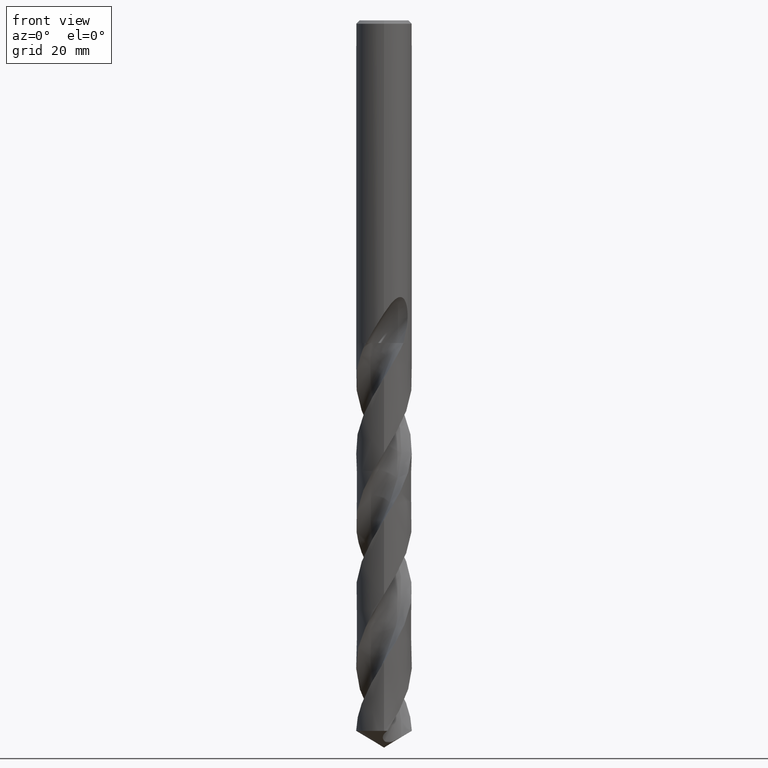
[diagram: clean part render]
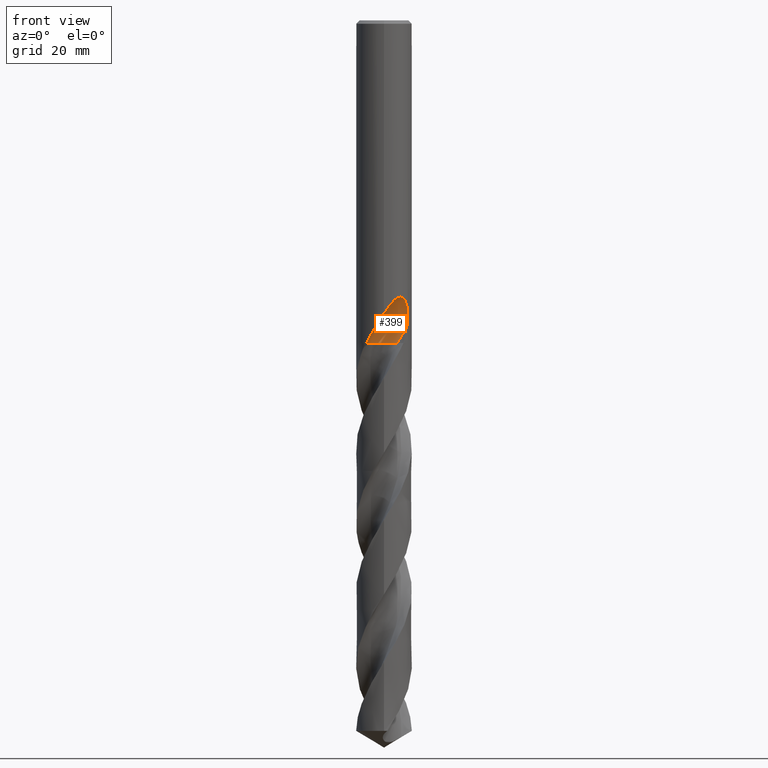
[diagram: same view with one face highlighted and labeled with its STEP entity id]
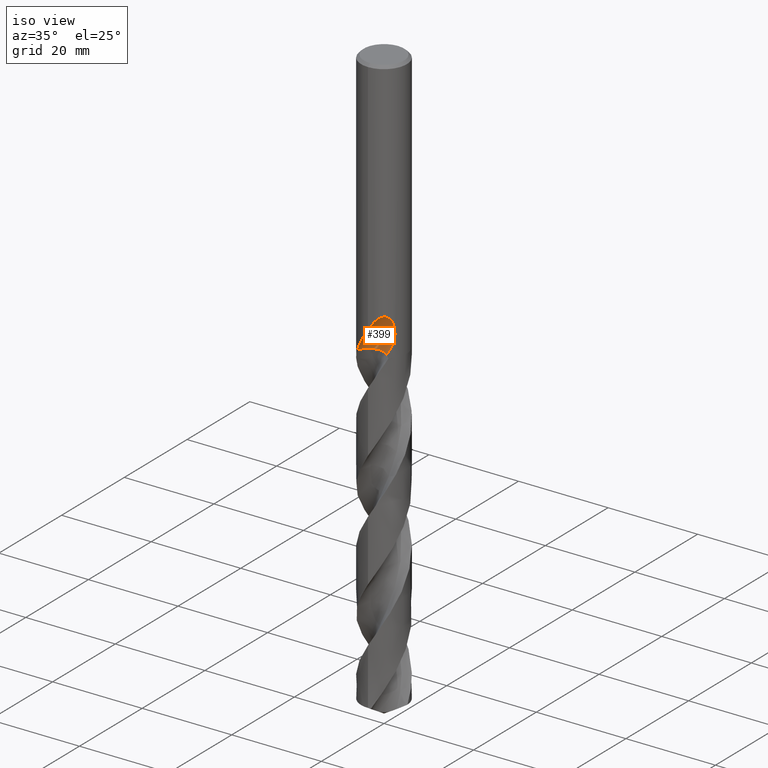
[diagram: same view with one face highlighted and labeled with its STEP entity id]
A machine part, front view. The second image highlights one B-rep face of the part: STEP entity #399.
A second angle (iso view) of the same face is appended — the face is thin or edge-on in the first view.
In plain terms, the highlighted face is a SurfaceOfRevolution surface.
Its self-contained STEP definition (entity closure, byte-faithful):
#321=EDGE_CURVE('',#389,#357,#824,.T.);
#357=VERTEX_POINT('',#863);
#367=EDGE_CURVE('',#379,#389,#874,.T.);
#379=VERTEX_POINT('',#887);
#389=VERTEX_POINT('',#898);
#399=ADVANCED_FACE('',(#908),#909,.F.);
#431=EDGE_CURVE('',#451,#357,#942,.T.);
#451=VERTEX_POINT('',#962);
#627=EDGE_CURVE('',#451,#379,#1156,.T.);
#824=B_SPLINE_CURVE_WITH_KNOTS('',3,(#2566,#2567,#2568,#2569,#2570,#2571,#2572,#2573,#2574,#2575,#2576,#2577,#2578,#2579,#2580,#2581,#2582,#2583,#2584,#2585,#2586,#2587,#2588,#2589,#2590,#2591,#2592,#2593,#2594,#2595),.UNSPECIFIED.,.F.,.F.,(4,2,2,2,2,2,2,2,2,2,2,2,2,2,4),(0.0,2.4950719510877,3.85909418089809,5.09509911552121,6.53135879807394,8.25636433044676,9.74920674358221,10.4265543005089,10.9216576712182,11.3901997545499,11.9846176148873,12.8543127021487,14.0906599803301,14.8994055225793,15.7493312377187),.UNSPECIFIED.);
#863=CARTESIAN_POINT('',(4.14957503285719,-2.96496661814062,-56.2123408369702));
#874=B_SPLINE_CURVE_WITH_KNOTS('',3,(#2695,#2696,#2697,#2698,#2699,#2700,#2701,#2702,#2703,#2704,#2705,#2706,#2707,#2708,#2709,#2710,#2711,#2712,#2713,#2714,#2715,#2716,#2717,#2718,#2719,#2720,#2721,#2722,#2723,#2724),.UNSPECIFIED.,.F.,.F.,(4,2,2,2,2,2,2,2,2,2,2,2,2,2,4),(0.0,2.4950719510877,3.85909418089809,5.09509911552121,6.53135879807394,8.25636433044676,9.74920674358221,10.4265543005089,10.9216576712182,11.3901997545499,11.9846176148873,12.8543127021487,14.0906599803301,14.8994055225793,15.7493312377187),.UNSPECIFIED.);
#887=CARTESIAN_POINT('',(-3.24742117750425,-3.93246178568806,-59.0));
#898=CARTESIAN_POINT('',(1.57483056814362E-012,-5.1,-53.5838170409705));
#908=FACE_OUTER_BOUND('',#2770,.T.);
#909=SURFACE_OF_REVOLUTION('',#2771,#2772);
#942=CIRCLE('',#3156,22.1608254907705);
#962=CARTESIAN_POINT('',(2.40728805596356,-2.52617731624715,-59.0));
#1156=B_SPLINE_CURVE_WITH_KNOTS('',3,(#6159,#6160,#6161,#6162,#6163,#6164,#6165,#6166,#6167,#6168,#6169,#6170,#6171,#6172,#6173,#6174),.UNSPECIFIED.,.F.,.F.,(4,2,2,2,2,2,2,4),(0.0,1.32844360017805,2.65677624217948,3.98494359383079,5.31295717618579,6.64089135407647,7.44763114962023,8.25439284904428),.UNSPECIFIED.);
#2566=CARTESIAN_POINT('',(-3.24742117750425,-3.93246178568806,-59.0));
#2567=CARTESIAN_POINT('',(-2.91119083963154,-4.21012030577873,-58.2917879950075));
#2568=CARTESIAN_POINT('',(-2.52479950570337,-4.45683804632251,-57.6313229566782));
#2569=CARTESIAN_POINT('',(-1.85105039082141,-4.7593864405125,-56.5277533242262));
#2570=CARTESIAN_POINT('',(-1.60842320830329,-4.84648102013342,-56.1391659253621));
#2571=CARTESIAN_POINT('',(-1.13864745598147,-4.97666403947384,-55.3868267743813));
#2572=CARTESIAN_POINT('',(-0.913585168848026,-5.02265751522056,-55.0265639749727));
#2573=CARTESIAN_POINT('',(-0.426365947176129,-5.08901340561633,-54.2500309867317));
#2574=CARTESIAN_POINT('',(-0.160126205962662,-5.10456081362639,-53.8276645279075));
#2575=CARTESIAN_POINT('',(0.431084993266238,-5.09198265498414,-52.9242168674046));
#2576=CARTESIAN_POINT('',(0.781640918551239,-5.05342792976026,-52.4101465984535));
#2577=CARTESIAN_POINT('',(1.45719454834791,-4.89795977138735,-51.5632769346286));
#2578=CARTESIAN_POINT('',(1.83056095313254,-4.77970698025273,-51.1505081833019));
#2579=CARTESIAN_POINT('',(2.39587723241107,-4.50645958400118,-50.7636848026744));
#2580=CARTESIAN_POINT('',(2.58315642428739,-4.40321796510915,-50.6680129607589));
#2581=CARTESIAN_POINT('',(2.91132122364481,-4.19064084015242,-50.5945383257956));
#2582=CARTESIAN_POINT('',(3.04592400676688,-4.09382898292652,-50.5931841829305));
#2583=CARTESIAN_POINT('',(3.29663220123308,-3.89441605033039,-50.657562784038));
#2584=CARTESIAN_POINT('',(3.40628076258921,-3.79810233528833,-50.717910048464));
#2585=CARTESIAN_POINT('',(3.62941954615204,-3.58703436846285,-50.9067176130963));
#2586=CARTESIAN_POINT('',(3.73265415588611,-3.47765238326496,-51.0461165136766));
#2587=CARTESIAN_POINT('',(3.94411228907184,-3.23880905160151,-51.427830613458));
#2588=CARTESIAN_POINT('',(4.04518257092419,-3.10874361137138,-51.7109509597922));
#2589=CARTESIAN_POINT('',(4.23522733916121,-2.84759531768925,-52.503068385647));
#2590=CARTESIAN_POINT('',(4.30392323678692,-2.73637431427971,-53.0671972662667));
#2591=CARTESIAN_POINT('',(4.33787989357989,-2.68205885755508,-54.1110998027676));
#2592=CARTESIAN_POINT('',(4.32987072141869,-2.69533865871961,-54.5267309087546));
#2593=CARTESIAN_POINT('',(4.27338162640221,-2.78408246543096,-55.3702497229125));
#2594=CARTESIAN_POINT('',(4.22295681717222,-2.86226623082526,-55.7949627997376));
#2595=CARTESIAN_POINT('',(4.1495750328572,-2.96496661814061,-56.2123408369702));
#2695=CARTESIAN_POINT('',(-3.24742117750425,-3.93246178568806,-59.0));
#2696=CARTESIAN_POINT('',(-2.91119083963154,-4.21012030577873,-58.2917879950075));
#2697=CARTESIAN_POINT('',(-2.52479950570337,-4.45683804632251,-57.6313229566782));
#2698=CARTESIAN_POINT('',(-1.85105039082141,-4.7593864405125,-56.5277533242262));
#2699=CARTESIAN_POINT('',(-1.60842320830329,-4.84648102013342,-56.1391659253621));
#2700=CARTESIAN_POINT('',(-1.13864745598147,-4.97666403947384,-55.3868267743813));
#2701=CARTESIAN_POINT('',(-0.913585168848026,-5.02265751522056,-55.0265639749727));
#2702=CARTESIAN_POINT('',(-0.426365947176129,-5.08901340561633,-54.2500309867317));
#2703=CARTESIAN_POINT('',(-0.160126205962662,-5.10456081362639,-53.8276645279075));
#2704=CARTESIAN_POINT('',(0.431084993266238,-5.09198265498414,-52.9242168674046));
#2705=CARTESIAN_POINT('',(0.781640918551239,-5.05342792976026,-52.4101465984535));
#2706=CARTESIAN_POINT('',(1.45719454834791,-4.89795977138735,-51.5632769346286));
#2707=CARTESIAN_POINT('',(1.83056095313254,-4.77970698025273,-51.1505081833019));
#2708=CARTESIAN_POINT('',(2.39587723241107,-4.50645958400118,-50.7636848026744));
#2709=CARTESIAN_POINT('',(2.58315642428739,-4.40321796510915,-50.6680129607589));
#2710=CARTESIAN_POINT('',(2.91132122364481,-4.19064084015242,-50.5945383257956));
#2711=CARTESIAN_POINT('',(3.04592400676688,-4.09382898292652,-50.5931841829305));
#2712=CARTESIAN_POINT('',(3.29663220123308,-3.89441605033039,-50.657562784038));
#2713=CARTESIAN_POINT('',(3.40628076258921,-3.79810233528833,-50.717910048464));
#2714=CARTESIAN_POINT('',(3.62941954615204,-3.58703436846285,-50.9067176130963));
#2715=CARTESIAN_POINT('',(3.73265415588611,-3.47765238326496,-51.0461165136766));
#2716=CARTESIAN_POINT('',(3.94411228907184,-3.23880905160151,-51.427830613458));
#2717=CARTESIAN_POINT('',(4.04518257092419,-3.10874361137138,-51.7109509597922));
#2718=CARTESIAN_POINT('',(4.23522733916121,-2.84759531768925,-52.503068385647));
#2719=CARTESIAN_POINT('',(4.30392323678692,-2.73637431427971,-53.0671972662667));
#2720=CARTESIAN_POINT('',(4.33787989357989,-2.68205885755508,-54.1110998027676));
#2721=CARTESIAN_POINT('',(4.32987072141869,-2.69533865871961,-54.5267309087546));
#2722=CARTESIAN_POINT('',(4.27338162640221,-2.78408246543096,-55.3702497229125));
#2723=CARTESIAN_POINT('',(4.22295681717222,-2.86226623082526,-55.7949627997376));
#2724=CARTESIAN_POINT('',(4.1495750328572,-2.96496661814061,-56.2123408369702));
#2770=EDGE_LOOP('',(#7375,#7376,#7377,#7378));
#2771=(B_SPLINE_CURVE(3,(#7380,#7381,#7382,#7383,#7384,#7385,#7386,#7387,#7388),.UNSPECIFIED.,.F.,.F.)B_SPLINE_CURVE_WITH_KNOTS((4,1,3,1,4),(-2.85637115602283,-2.55358365467708,-2.25079615333134,-1.94800865198559,-1.64522115063984),.UNSPECIFIED.)RATIONAL_B_SPLINE_CURVE((1.0916802709712,1.03056009032373,0.969439909676266,1.03056009032373,1.0916802709712,1.03056009032373,0.969439909676266,1.03056009032373,1.0916802709712))BOUNDED_CURVE()REPRESENTATION_ITEM('')GEOMETRIC_REPRESENTATION_ITEM()CURVE());
#2772=AXIS1_PLACEMENT('',#7395,#7396);
#3156=AXIS2_PLACEMENT_3D('',#7413,#7414,#7415);
#6159=CARTESIAN_POINT('',(2.40728805596356,-2.52617731624715,-59.0));
#6160=CARTESIAN_POINT('',(2.09419781959481,-2.21303323619079,-59.0));
#6161=CARTESIAN_POINT('',(1.72293622843883,-1.96403426956858,-59.0));
#6162=CARTESIAN_POINT('',(0.90589975688081,-1.62238669406264,-59.0));
#6163=CARTESIAN_POINT('',(0.467940046021103,-1.53299050229822,-59.0));
#6164=CARTESIAN_POINT('',(-0.417537739229643,-1.52712367206561,-59.0));
#6165=CARTESIAN_POINT('',(-0.856588538131872,-1.61068784092582,-59.0));
#6166=CARTESIAN_POINT('',(-1.67789248266723,-1.94140455834225,-59.0));
#6167=CARTESIAN_POINT('',(-2.05229709291718,-2.18537538029904,-59.0));
#6168=CARTESIAN_POINT('',(-2.68649032315178,-2.80309157232361,-59.0));
#6169=CARTESIAN_POINT('',(-2.94021865381422,-3.17091975816711,-59.0));
#6170=CARTESIAN_POINT('',(-3.22328949644631,-3.82374425417961,-59.0));
#6171=CARTESIAN_POINT('',(-3.30061565487939,-4.08228500235234,-59.0));
#6172=CARTESIAN_POINT('',(-3.39272271977271,-4.61217030400595,-59.0));
#6173=CARTESIAN_POINT('',(-3.40717724186164,-4.88164716214578,-59.0));
#6174=CARTESIAN_POINT('',(-3.38973188510463,-5.15,-59.0));
#7375=ORIENTED_EDGE('',*,*,#627,.F.);
#7376=ORIENTED_EDGE('',*,*,#431,.T.);
#7377=ORIENTED_EDGE('',*,*,#321,.F.);
#7378=ORIENTED_EDGE('',*,*,#367,.F.);
#7380=CARTESIAN_POINT('',(2.40416305596356,-2.52583694403646,-59.005));
#7381=CARTESIAN_POINT('',(1.93325734928232,-2.05492401393571,-59.005));
#7382=CARTESIAN_POINT('',(0.708765920044553,-1.38580055137486,-59.005));
#7383=CARTESIAN_POINT('',(-0.67888491163738,-1.53253377105811,-59.005));
#7384=CARTESIAN_POINT('',(-1.29468032693961,-1.78612237256412,-59.005));
#7385=CARTESIAN_POINT('',(-1.91047574224185,-2.03971097407013,-59.005));
#7386=CARTESIAN_POINT('',(-2.99904846388914,-2.91270289734982,-59.005));
#7387=CARTESIAN_POINT('',(-3.39725613945092,-4.25006452217306,-59.005));
#7388=CARTESIAN_POINT('',(-3.39998979508117,-4.91602525633681,-59.005));
#7395=CARTESIAN_POINT('',(1.7288363548502,-24.65,-60.0855227217814));
#7396=DIRECTION('',(-0.847998304005088,0.0,0.52999894000318));
#7413=CARTESIAN_POINT('',(1.7288363548502,-24.65,-60.0855227217814));
#7414=DIRECTION('',(0.847998304005088,-7.2341638399316E-018,-0.52999894000318));
#7415=DIRECTION('',(0.0535598122533606,0.994880693138896,0.085695699605377));